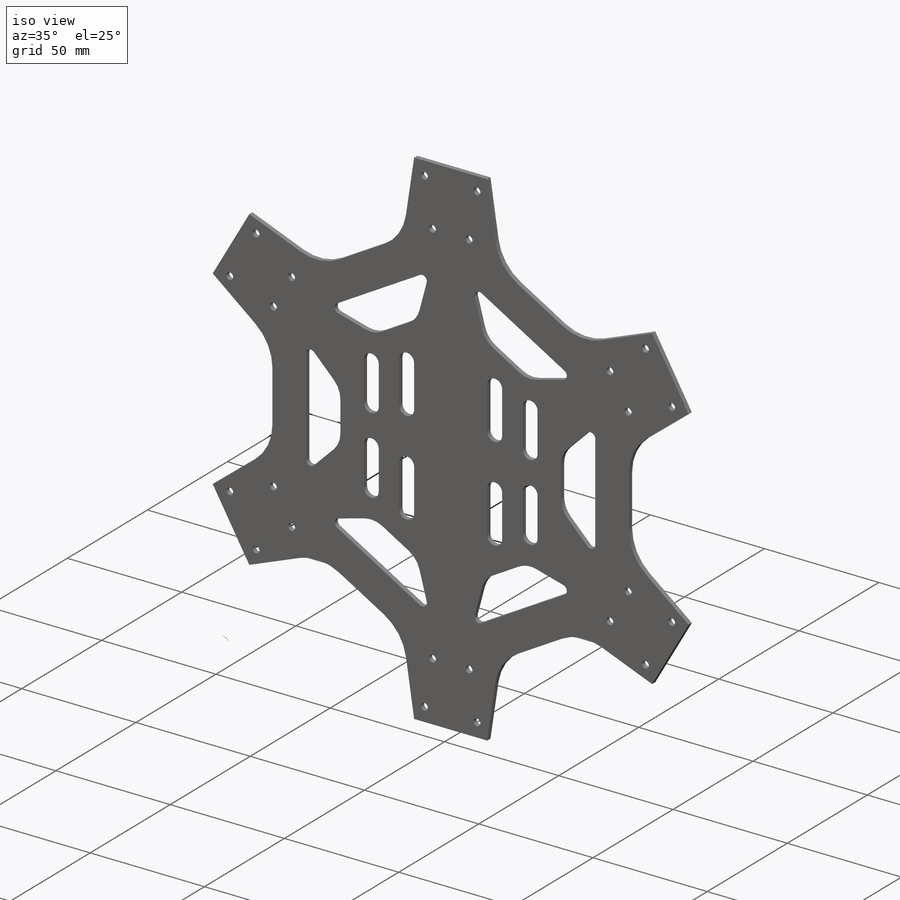
[diagram: iso view]
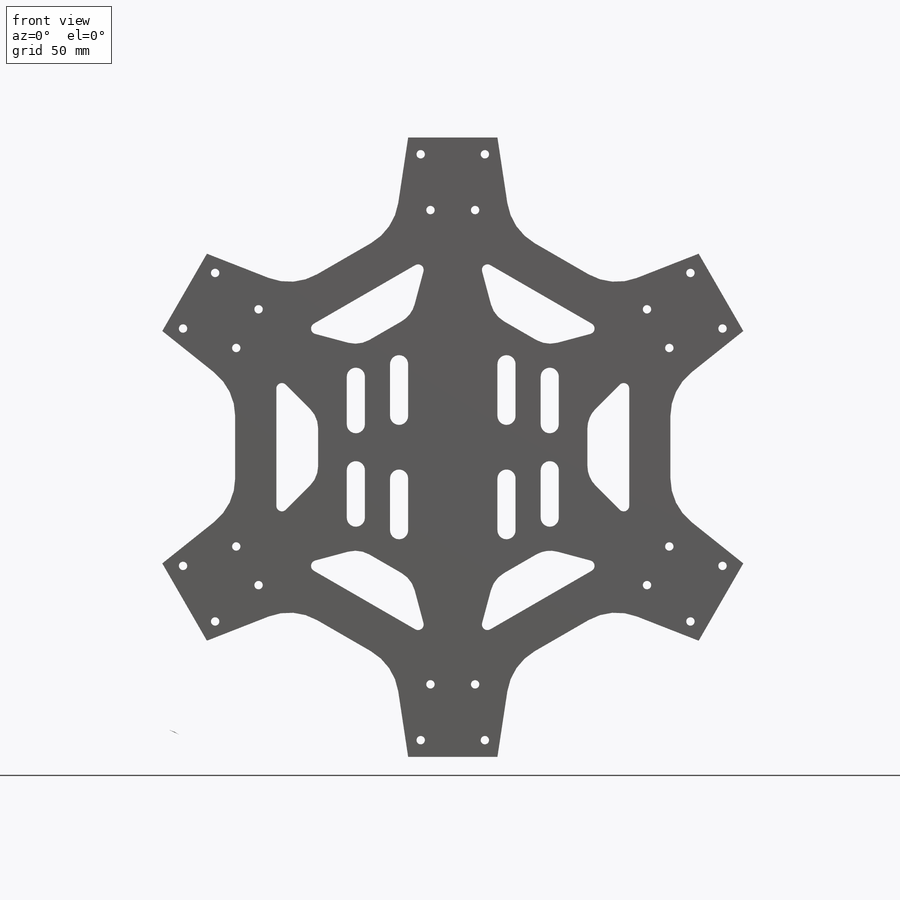
[diagram: front view]
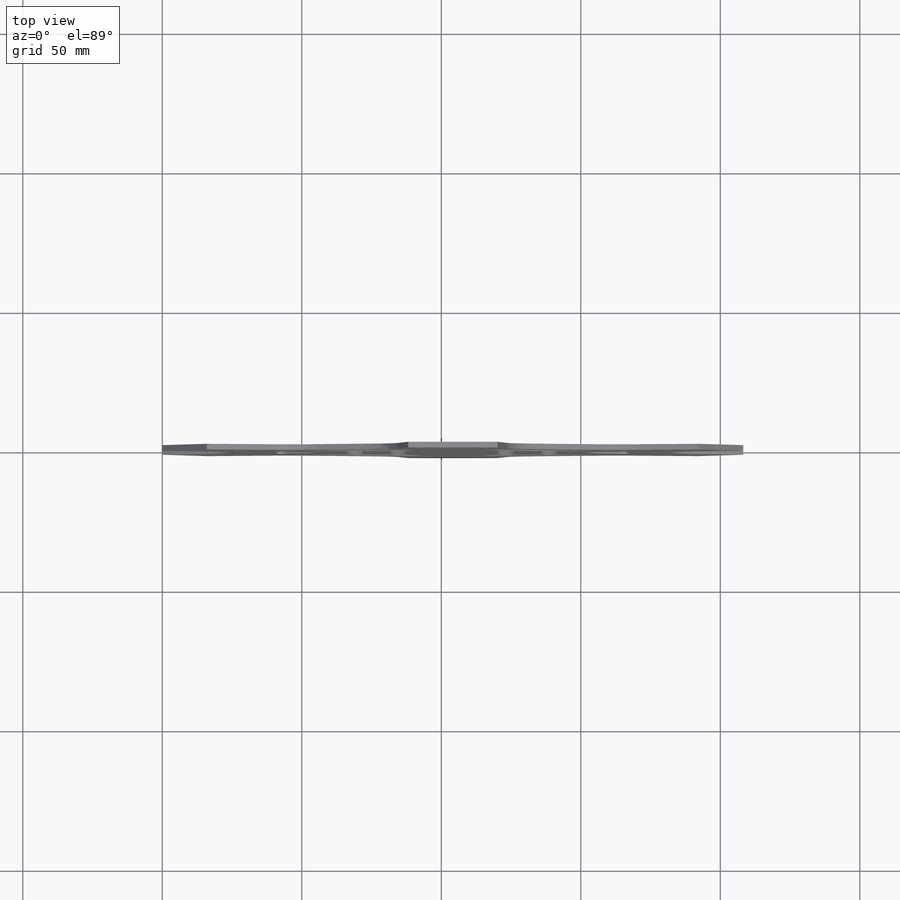
[diagram: top view]
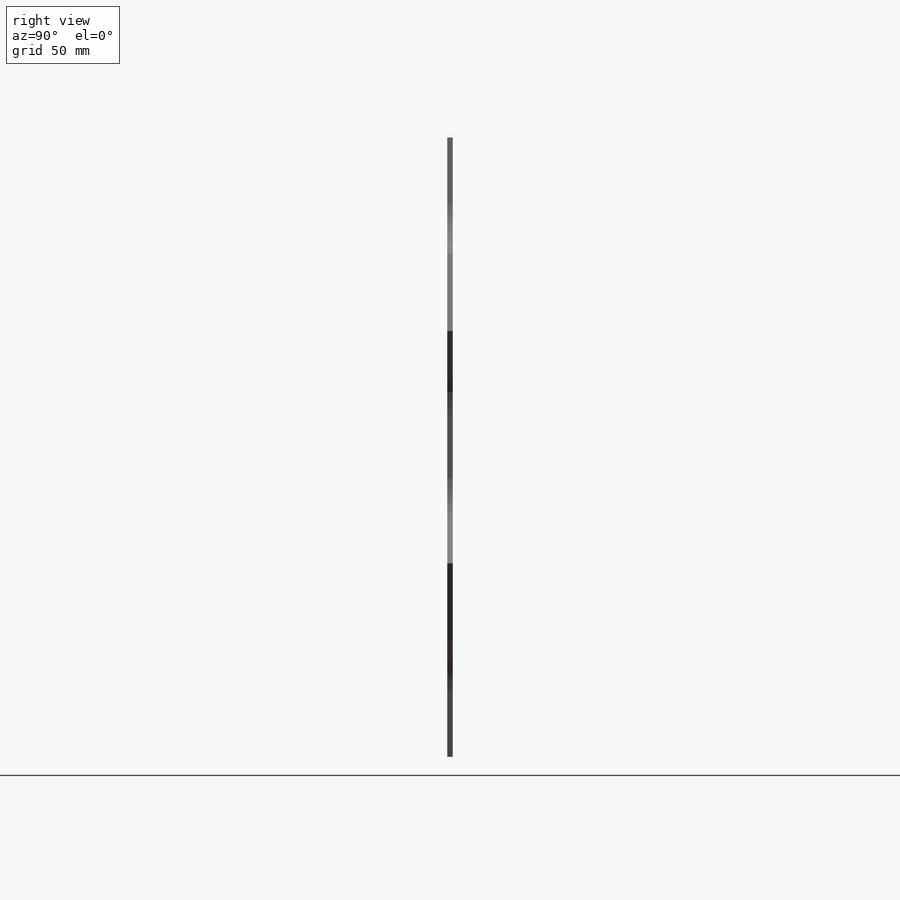
[diagram: right view]
SOLIDWORKS PART (.sldprt)
format: sldprt  version: not decoded by parser v0  size: 520,192 bytes
history: native  units: mm
features: sketch x4, cut_extrude x3, material x1, extrude x1 (+13 scaffold rows collapsed)
feature tree (22):
  scaffold x13  (default folders/planes/origin — collapsed)
  material  "Processing Board, Simple"
  sketch  "Sketch1"  dims[c1.D6=20.0mm c1.D1=222.0mm c1.D2=156.0mm c1.D3=32.0mm c1.D4=42.0mm c2.D6=~88.12882mm c2.D5=6.0]
  extrude  "Boss-Extrude1"  Depth=2mm
  sketch  "Sketch2"  dims[c1.D3=2.0mm c1.D4=10.0mm c1.D1=15.0mm c1.D2=126.5mm c2.D3=~1.52803mm c2.D5=42.0mm c2.D6=63.25mm c2.D2=126.5mm c2.D7=6.0]
  cut_extrude  "Cut-Extrude1"  [1 undecoded]
  sketch  "Sketch3"  dims[D1=6.5mm D2=9.0mm D3=10.0mm D4=16.0mm D5=23.5mm D6=25.0mm D7=32.0mm]
  cut_extrude  "Cut-Extrude2"  [1 undecoded]
  sketch  "Sketch4"  dims[c1.D1=3.0mm c1.D6=~16.007737mm c1.D2=23.0mm c1.D3=16.0mm c1.D4=20.0mm c1.D5=6.0mm c2.D6=6.0]
  cut_extrude  "Cut-Extrude3"  [1 undecoded]
decode coverage: 5 of 8 modeling features carry decoded parameters
note: ~ marks probable driven/reference dimensions
note: 3 parameter values undecoded
summary: no parameter record found for 3 features
note: suppression state not decoded; provenance and decode notes live in map.json
